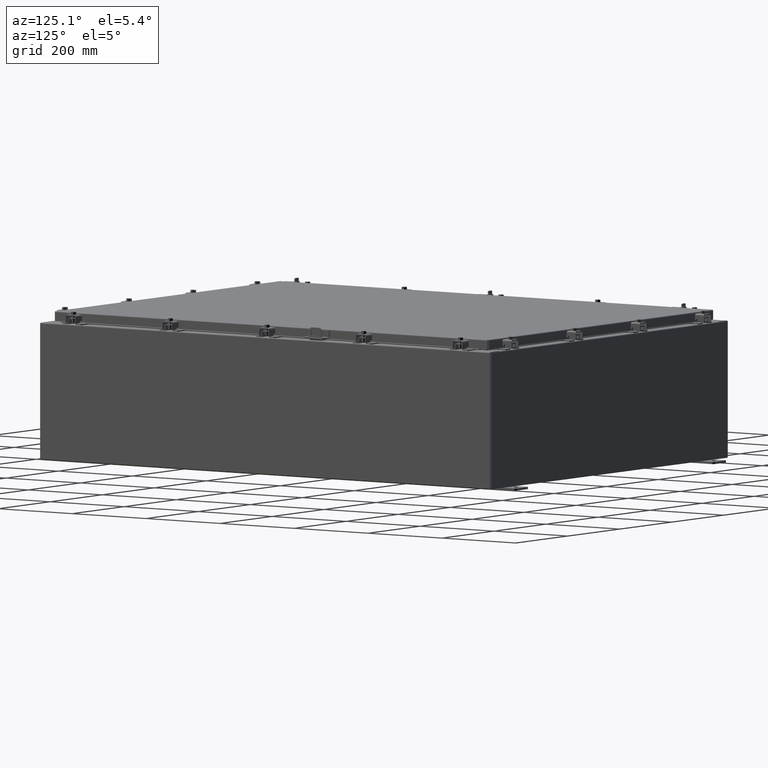
[diagram: clean part render]
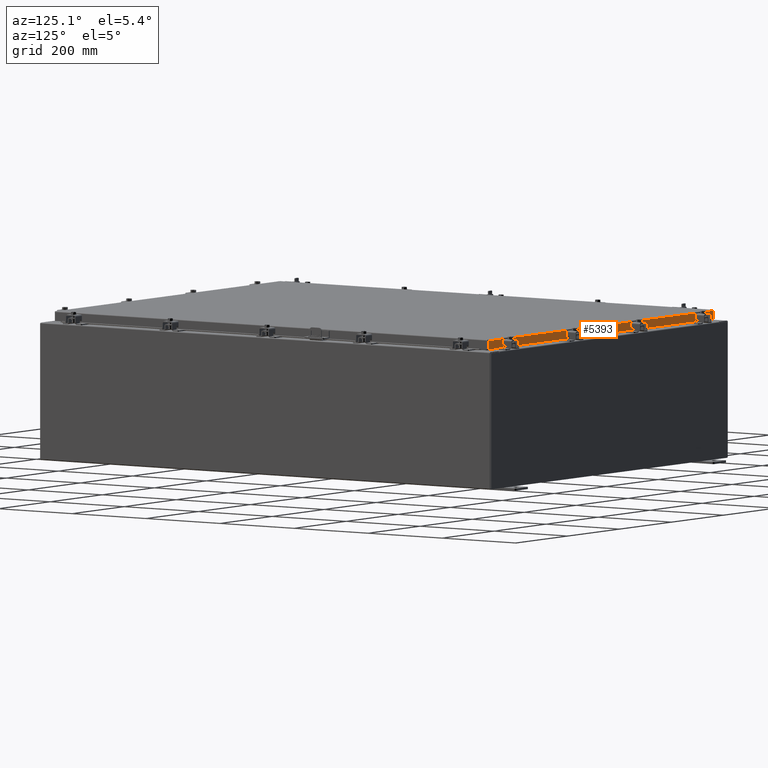
[diagram: same view with one face highlighted and labeled with its STEP entity id]
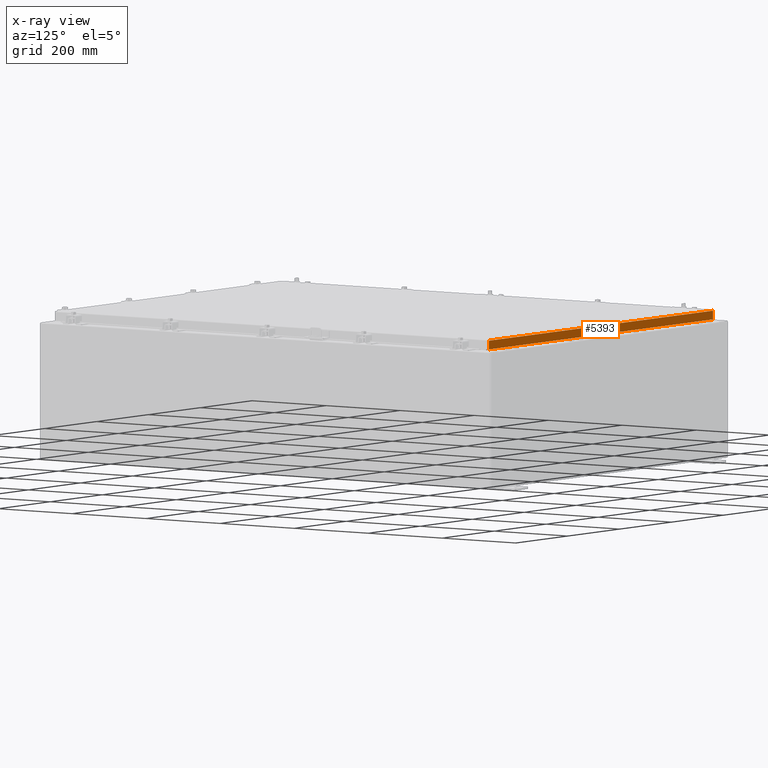
[diagram: x-ray of the same camera — body ghosted, the highlighted face saturated]
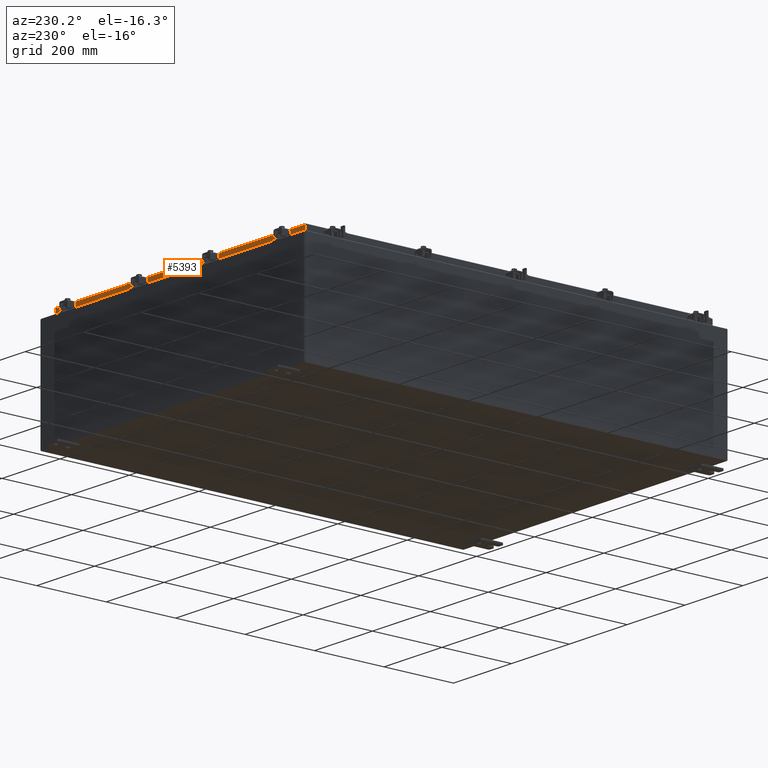
[diagram: same view with one face highlighted and labeled with its STEP entity id]
A machine part, auxiliary view. The second image highlights one B-rep face of the part: STEP entity #5393.
The next image is the same camera in x-ray: the body ghosted, the highlighted face saturated — about 0% of this face is hidden behind the body in this view.
A second angle (auxiliary view) of the same face is appended — the face is thin or edge-on in the first view.
In plain terms, the highlighted planar face has unit normal (0, -1, -0).
Its self-contained STEP definition (entity closure, byte-faithful):
#236 = DIRECTION ( 'NONE',  ( 0.0000000000000000000, 5.637761885544689500E-015, -1.000000000000000000 ) ) ;
#1287 = CARTESIAN_POINT ( 'NONE',  ( 16.23915786437626400, 23.09399999999999400, -0.8500000000000037500 ) ) ;
#2511 = ORIENTED_EDGE ( 'NONE', *, *, #18611, .F. ) ;
#2826 = DIRECTION ( 'NONE',  ( 1.000000000000000000, -0.0000000000000000000, -0.0000000000000000000 ) ) ;
#4068 = DIRECTION ( 'NONE',  ( -1.000000000000000000, -6.989207801985677300E-031, -3.922586267643528000E-045 ) ) ;
#4187 = LINE ( 'NONE', #17984, #26601 ) ;
#4579 = VECTOR ( 'NONE', #4068, 39.37007874015748100 ) ;
#4724 = ORIENTED_EDGE ( 'NONE', *, *, #13756, .T. ) ;
#4769 = CARTESIAN_POINT ( 'NONE',  ( -16.98915786437626700, 23.09399999999999400, -0.07469999999999958600 ) ) ;
#4982 = VERTEX_POINT ( 'NONE', #22034 ) ;
#5264 = LINE ( 'NONE', #12443, #4579 ) ;
#5393 = ADVANCED_FACE ( 'NONE', ( #25757 ), #14298, .F. ) ;
#5950 = CARTESIAN_POINT ( 'NONE',  ( -1.614087649790571900E-029, 23.09399999999999400, 1.304592866407806300E-013 ) ) ;
#6045 = ORIENTED_EDGE ( 'NONE', *, *, #17182, .F. ) ;
#7660 = LINE ( 'NONE', #13030, #17523 ) ;
#8652 = VERTEX_POINT ( 'NONE', #26835 ) ;
#8950 = VERTEX_POINT ( 'NONE', #1287 ) ;
#10134 = DIRECTION ( 'NONE',  ( 0.0000000000000000000, 5.637761885544689500E-015, -1.000000000000000000 ) ) ;
#10211 = ORIENTED_EDGE ( 'NONE', *, *, #13824, .F. ) ;
#10455 = EDGE_LOOP ( 'NONE', ( #6045, #4724, #2511, #14569, #10211, #21132 ) ) ;
#11025 = EDGE_CURVE ( 'NONE', #11943, #12169, #25192, .T. ) ;
#11072 = EDGE_CURVE ( 'NONE', #8652, #8950, #18936, .T. ) ;
#11943 = VERTEX_POINT ( 'NONE', #22438 ) ;
#12169 = VERTEX_POINT ( 'NONE', #16908 ) ;
#12443 = CARTESIAN_POINT ( 'NONE',  ( -17.07799999999999900, 23.09399999999999400, -0.08769999999999547600 ) ) ;
#13030 = CARTESIAN_POINT ( 'NONE',  ( -17.07799999999999900, 23.09400000000000100, -0.8500000000000038600 ) ) ;
#13353 = VECTOR ( 'NONE', #2826, 39.37007874015748100 ) ;
#13756 = EDGE_CURVE ( 'NONE', #16678, #4982, #26406, .T. ) ;
#13824 = EDGE_CURVE ( 'NONE', #12169, #8652, #7660, .T. ) ;
#14298 = PLANE ( 'NONE',  #19479 ) ;
#14569 = ORIENTED_EDGE ( 'NONE', *, *, #11072, .F. ) ;
#15282 = DIRECTION ( 'NONE',  ( -0.0000000000000000000, 5.637761885544689500E-015, -1.000000000000000000 ) ) ;
#16678 = VERTEX_POINT ( 'NONE', #25605 ) ;
#16908 = CARTESIAN_POINT ( 'NONE',  ( -16.98915786437626700, 23.09400000000000100, -0.8500000000000038600 ) ) ;
#17182 = EDGE_CURVE ( 'NONE', #16678, #11943, #5264, .T. ) ;
#17523 = VECTOR ( 'NONE', #25611, 39.37007874015748100 ) ;
#17570 = CARTESIAN_POINT ( 'NONE',  ( -16.23915786437626000, 23.09399999999999400, -0.8500000000000037500 ) ) ;
#17984 = CARTESIAN_POINT ( 'NONE',  ( -17.07799999999999900, 23.09400000000000100, -0.8500000000000038600 ) ) ;
#18611 = EDGE_CURVE ( 'NONE', #8950, #4982, #4187, .T. ) ;
#18936 = LINE ( 'NONE', #17570, #13353 ) ;
#19097 = CARTESIAN_POINT ( 'NONE',  ( 16.98915786437627100, 23.09399999999999400, 1.304592866407806300E-013 ) ) ;
#19479 = AXIS2_PLACEMENT_3D ( 'NONE', #5950, #22754, #10134 ) ;
#20263 = VECTOR ( 'NONE', #15282, 39.37007874015748100 ) ;
#21132 = ORIENTED_EDGE ( 'NONE', *, *, #11025, .F. ) ;
#22034 = CARTESIAN_POINT ( 'NONE',  ( 16.98915786437627100, 23.09400000000000100, -0.8499999999999996400 ) ) ;
#22438 = CARTESIAN_POINT ( 'NONE',  ( -16.98915786437626700, 23.09399999999999400, -0.08769999999999549000 ) ) ;
#22754 = DIRECTION ( 'NONE',  ( 6.989207801985676400E-031, -1.000000000000000000, -5.637761885544689500E-015 ) ) ;
#25192 = LINE ( 'NONE', #4769, #20263 ) ;
#25605 = CARTESIAN_POINT ( 'NONE',  ( 16.98915786437627100, 23.09399999999999400, -0.08769999999999547600 ) ) ;
#25611 = DIRECTION ( 'NONE',  ( 1.000000000000000000, -0.0000000000000000000, 1.239713195391617400E-016 ) ) ;
#25732 = VECTOR ( 'NONE', #236, 39.37007874015748100 ) ;
#25757 = FACE_OUTER_BOUND ( 'NONE', #10455, .T. ) ;
#26330 = DIRECTION ( 'NONE',  ( 1.000000000000000000, -0.0000000000000000000, 1.239713195391617400E-016 ) ) ;
#26406 = LINE ( 'NONE', #19097, #25732 ) ;
#26601 = VECTOR ( 'NONE', #26330, 39.37007874015748100 ) ;
#26835 = CARTESIAN_POINT ( 'NONE',  ( -16.23915786437625600, 23.09399999999999400, -0.8500000000000037500 ) ) ;